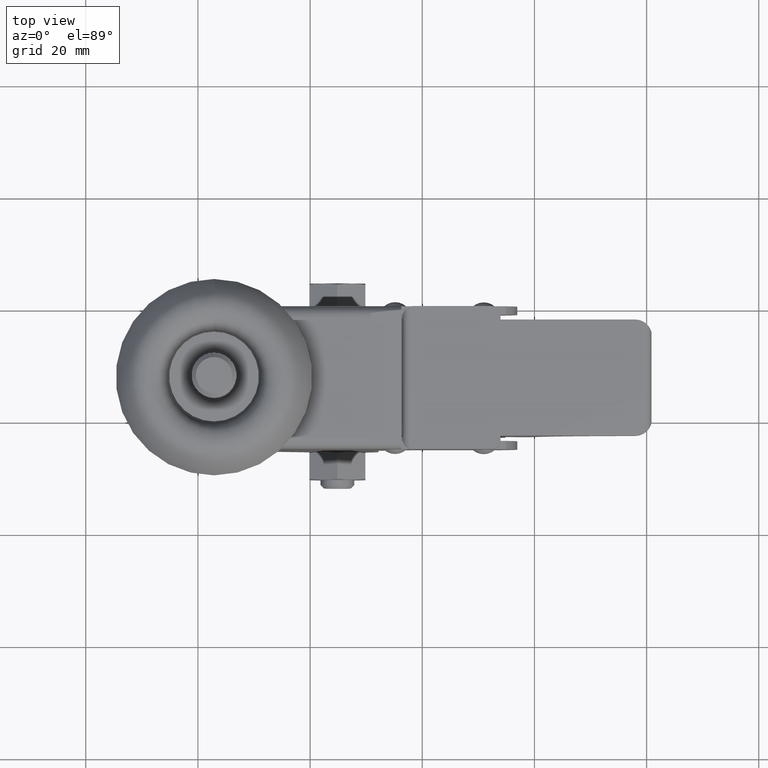
[diagram: clean part render]
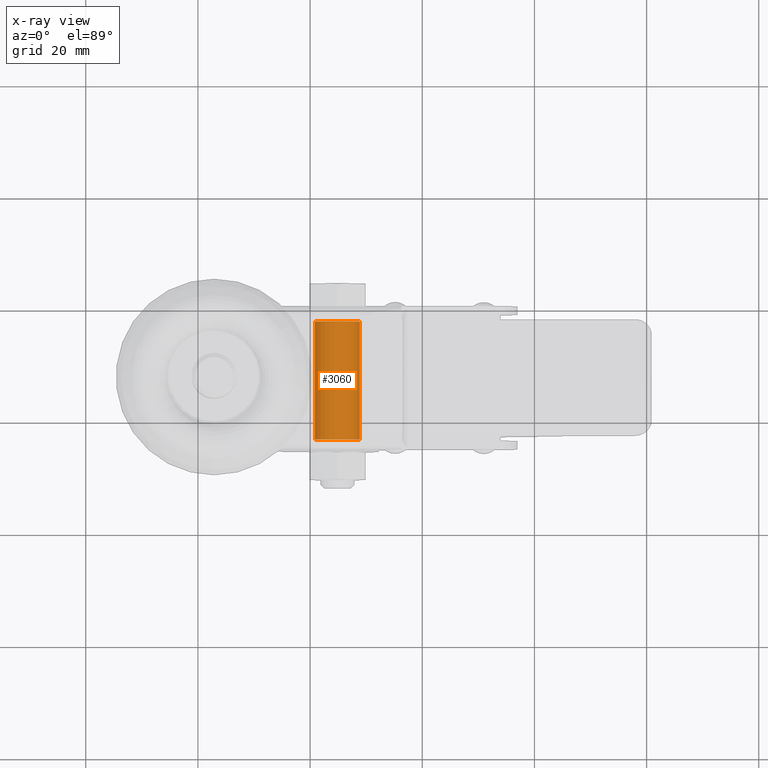
[diagram: x-ray — body ghosted, one internal face saturated and labeled with its STEP entity id]
A machine part, top view, then the same camera in x-ray: the body is ghosted and one INTERNAL B-rep face — a face not visible from any outside direction — is saturated and labeled: STEP entity #3060.
In plain terms, the highlighted cylindrical surface (bore or boss wall) has radius 4 mm, axis along (-0.0001, 1, 0).
Its self-contained STEP definition (entity closure, byte-faithful):
#296=LINE('',#5814,#457);
#457=VECTOR('',#4560,4.);
#519=CYLINDRICAL_SURFACE('',#3647,4.);
#794=FACE_OUTER_BOUND('',#1012,.T.);
#1012=EDGE_LOOP('',(#2777,#2778,#2779,#2780));
#1206=CIRCLE('',#3646,4.);
#1207=CIRCLE('',#3648,4.);
#1536=VERTEX_POINT('',#5810);
#1537=VERTEX_POINT('',#5813);
#1952=EDGE_CURVE('',#1536,#1536,#1206,.T.);
#1953=EDGE_CURVE('',#1536,#1537,#296,.T.);
#1954=EDGE_CURVE('',#1537,#1537,#1207,.T.);
#2777=ORIENTED_EDGE('',*,*,#1952,.F.);
#2778=ORIENTED_EDGE('',*,*,#1953,.T.);
#2779=ORIENTED_EDGE('',*,*,#1954,.T.);
#2780=ORIENTED_EDGE('',*,*,#1953,.F.);
#3060=ADVANCED_FACE('',(#794),#519,.F.);
#3646=AXIS2_PLACEMENT_3D('',#5811,#4556,#4557);
#3647=AXIS2_PLACEMENT_3D('',#5812,#4558,#4559);
#3648=AXIS2_PLACEMENT_3D('',#5815,#4561,#4562);
#4556=DIRECTION('center_axis',(1.,0.,0.));
#4557=DIRECTION('ref_axis',(0.,0.,-1.));
#4558=DIRECTION('center_axis',(1.,0.,0.));
#4559=DIRECTION('ref_axis',(0.,0.,-1.));
#4560=DIRECTION('',(1.,0.,0.));
#4561=DIRECTION('center_axis',(1.,0.,0.));
#4562=DIRECTION('ref_axis',(0.,0.,-1.));
#5810=CARTESIAN_POINT('',(0.,-4.89858719658941E-16,4.));
#5811=CARTESIAN_POINT('Origin',(0.,0.,0.));
#5812=CARTESIAN_POINT('Origin',(21.,0.,0.));
#5813=CARTESIAN_POINT('',(21.,-4.89858719658941E-16,4.));
#5814=CARTESIAN_POINT('',(21.,-4.89858719658941E-16,4.));
#5815=CARTESIAN_POINT('Origin',(21.,0.,0.));